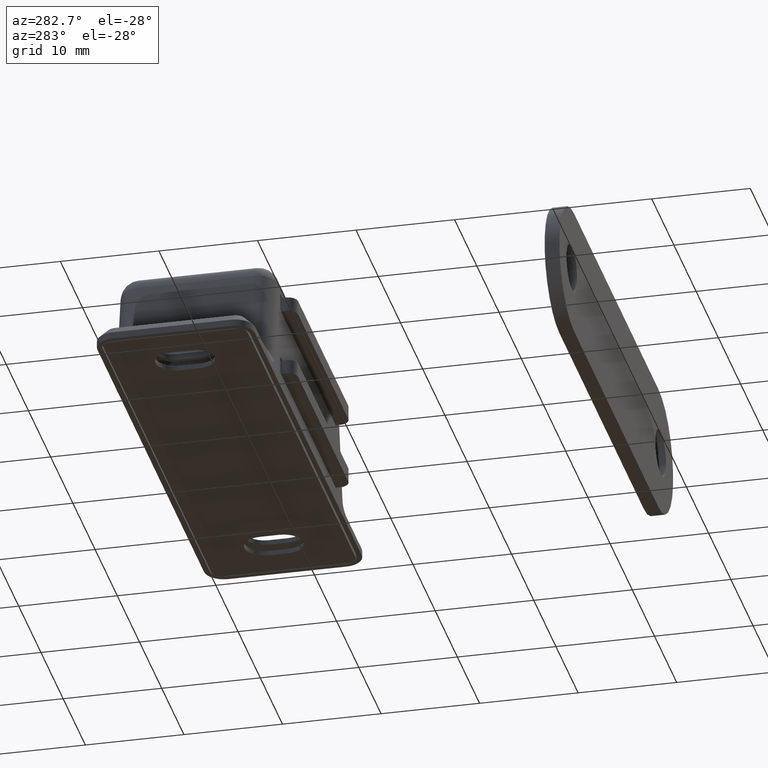
[diagram: clean part render]
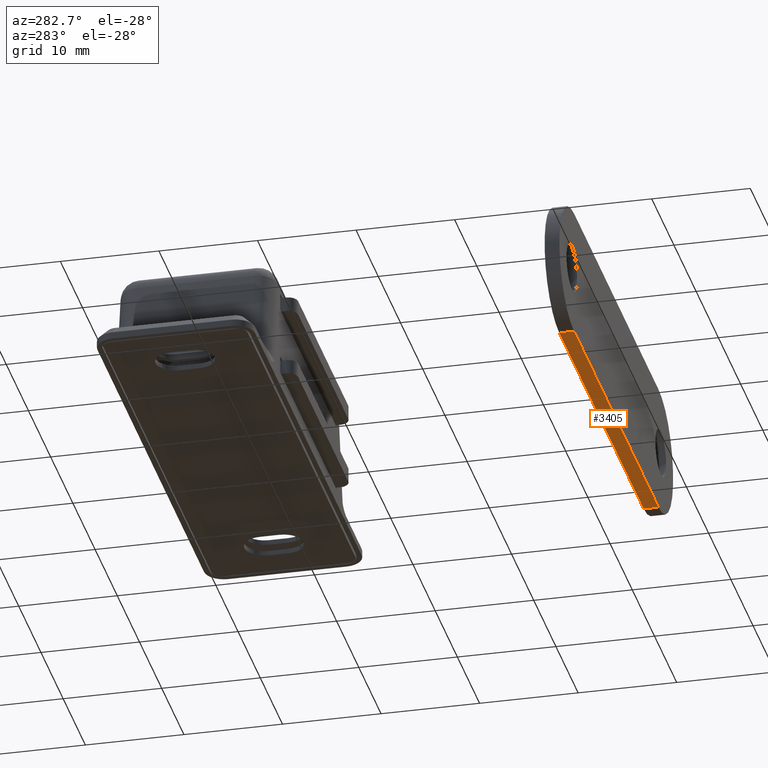
[diagram: same view with one face highlighted and labeled with its STEP entity id]
A machine part, auxiliary view. The second image highlights one B-rep face of the part: STEP entity #3405.
In plain terms, the highlighted planar face has unit normal (0, 0, -1).
Its self-contained STEP definition (entity closure, byte-faithful):
#230=PLANE('',#3735);
#422=FACE_OUTER_BOUND('',#630,.T.);
#630=EDGE_LOOP('',(#3133,#3134,#3135,#3136));
#968=LINE('',#6396,#1264);
#969=LINE('',#6399,#1265);
#970=LINE('',#6401,#1266);
#971=LINE('',#6402,#1267);
#1264=VECTOR('',#4670,1.5);
#1265=VECTOR('',#4673,38.);
#1266=VECTOR('',#4674,38.);
#1267=VECTOR('',#4675,1.5);
#1691=VERTEX_POINT('',#6389);
#1694=VERTEX_POINT('',#6394);
#1695=VERTEX_POINT('',#6398);
#1696=VERTEX_POINT('',#6400);
#2176=EDGE_CURVE('',#1691,#1694,#968,.T.);
#2177=EDGE_CURVE('',#1695,#1691,#969,.T.);
#2178=EDGE_CURVE('',#1696,#1694,#970,.T.);
#2179=EDGE_CURVE('',#1695,#1696,#971,.T.);
#3133=ORIENTED_EDGE('',*,*,#2177,.T.);
#3134=ORIENTED_EDGE('',*,*,#2176,.T.);
#3135=ORIENTED_EDGE('',*,*,#2178,.F.);
#3136=ORIENTED_EDGE('',*,*,#2179,.F.);
#3405=ADVANCED_FACE('',(#422),#230,.T.);
#3735=AXIS2_PLACEMENT_3D('',#6397,#4671,#4672);
#4670=DIRECTION('',(0.,0.,1.));
#4671=DIRECTION('center_axis',(0.,1.,0.));
#4672=DIRECTION('ref_axis',(-1.,0.,0.));
#4673=DIRECTION('',(-1.,0.,0.));
#4674=DIRECTION('',(-1.,0.,0.));
#4675=DIRECTION('',(0.,0.,1.));
#6389=CARTESIAN_POINT('',(2.4892766882417E-16,6.6,0.));
#6394=CARTESIAN_POINT('',(2.4892766882417E-16,6.6,1.5));
#6396=CARTESIAN_POINT('',(2.4892766882417E-16,6.6,0.));
#6397=CARTESIAN_POINT('Origin',(38.,6.6,0.));
#6398=CARTESIAN_POINT('',(38.,6.6,0.));
#6399=CARTESIAN_POINT('',(38.,6.6,0.));
#6400=CARTESIAN_POINT('',(38.,6.6,1.5));
#6401=CARTESIAN_POINT('',(38.,6.6,1.5));
#6402=CARTESIAN_POINT('',(38.,6.6,0.));